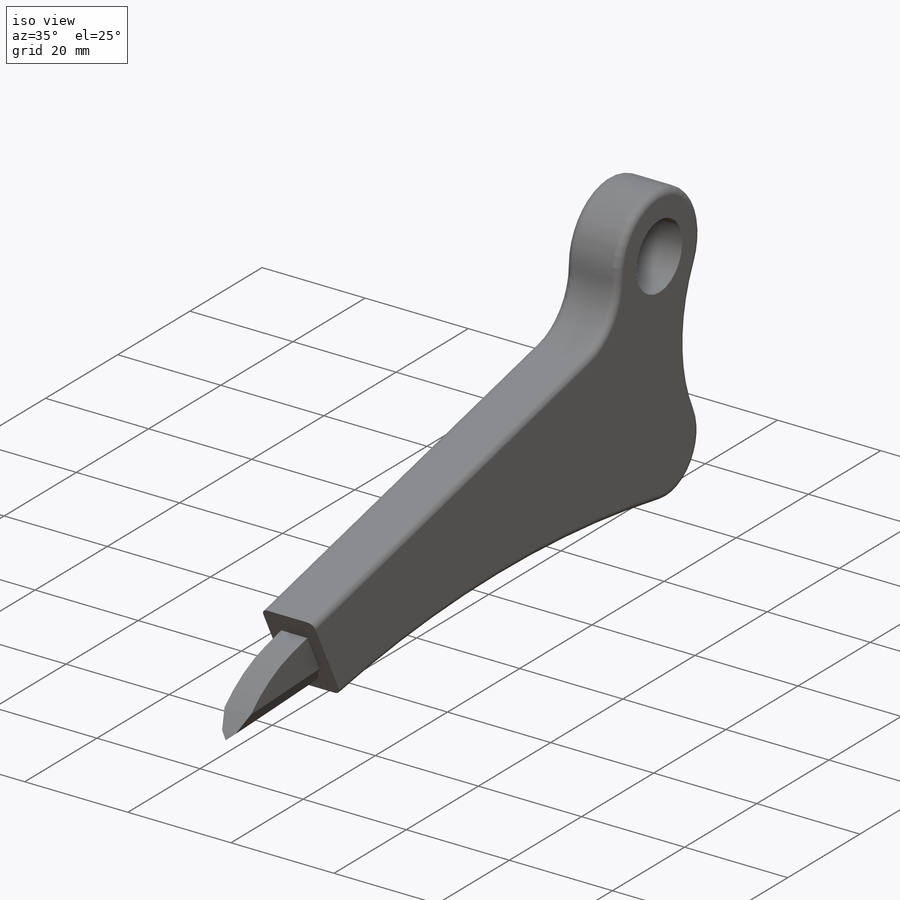
[diagram: iso view]
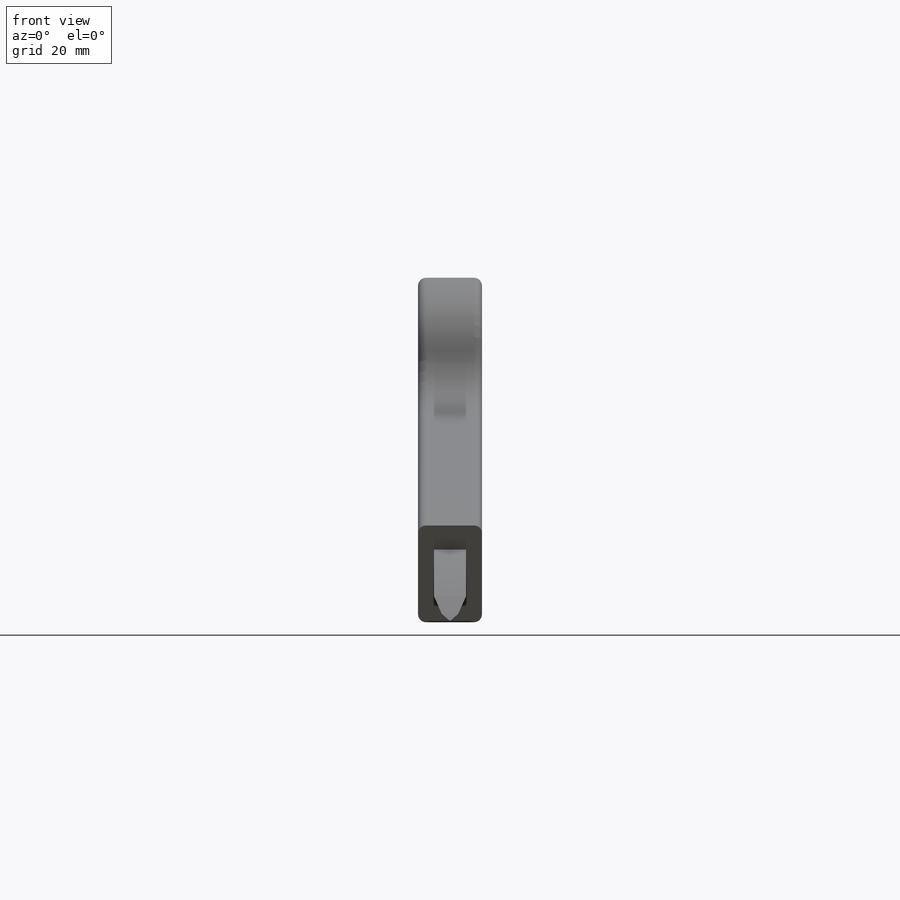
[diagram: front view]
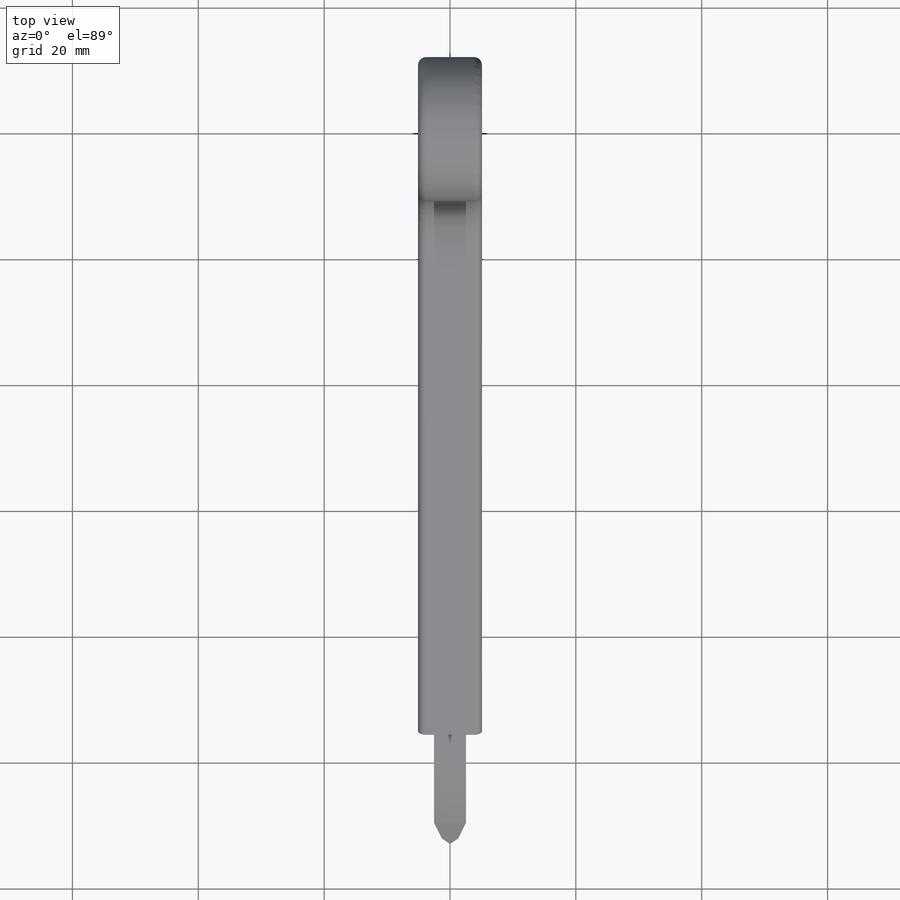
[diagram: top view]
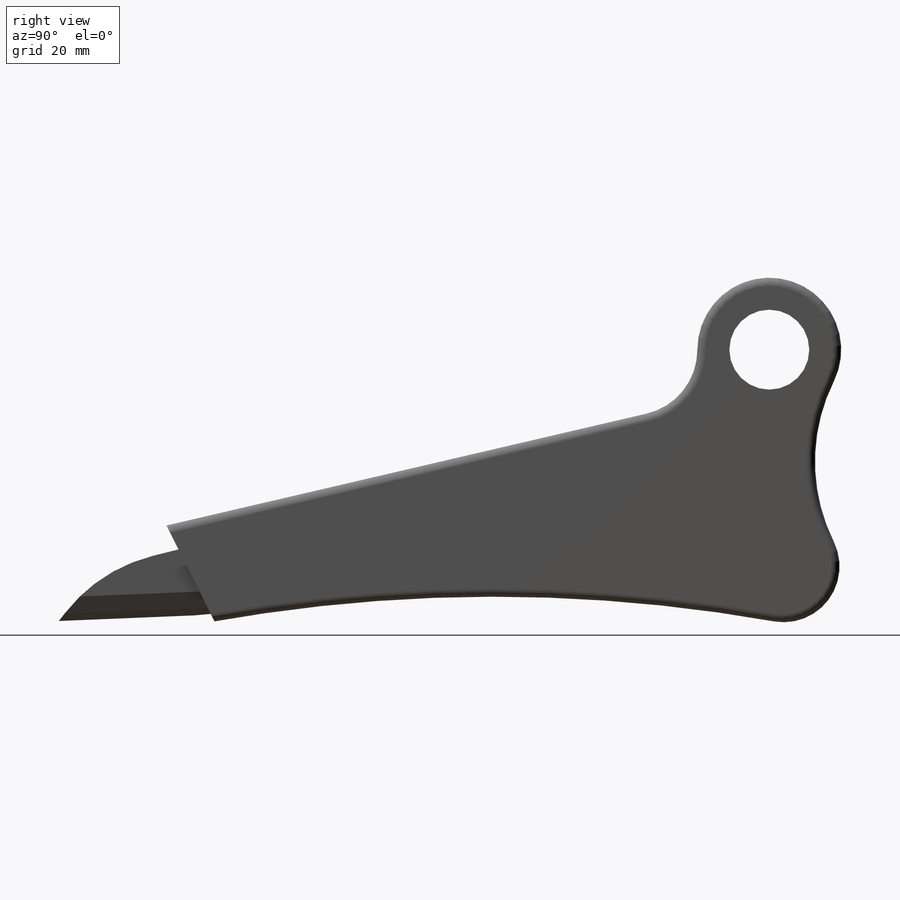
[diagram: right view]
SOLIDWORKS PART (.sldprt)
format: sldprt  version: not decoded by parser v0  size: 457,728 bytes
history: native  units: mm
features: sketch x2, extrude x2, fillet x2, chamfer x2, material x1 (+13 scaffold rows collapsed)
feature tree (22):
  scaffold x13  (default folders/planes/origin — collapsed)
  material  "Material <not specified>"
  sketch  "Sketch1"  dims[D1=12.7mm D2=11.43mm D11=254.0mm D3=5.08mm D4=25.4mm D5=12.7mm D6=88.9mm D7=7.62mm D8=15.24mm D9=5.08mm D10=10.16mm]
  extrude  "Boss-Extrude1"  Depth=10.16mm
  fillet  "Fillet1"  Radius=1.27mm
  sketch  "Sketch3"  dims[D1=20.32mm D2=3.81mm D3=12.7mm D4=3.175mm D5=6.35mm]
  extrude  "Boss-Extrude2"  Depth=5.08mm
  chamfer  "Chamfer1"  Distance=3.81mm Angle=25deg
  fillet  "Fillet2"  Radius=25.4mm
  chamfer  "Chamfer2"  Distance=1.27mm Angle=25deg
decode coverage: 8 of 8 modeling features carry decoded parameters
note: suppression state not decoded; provenance and decode notes live in map.json
